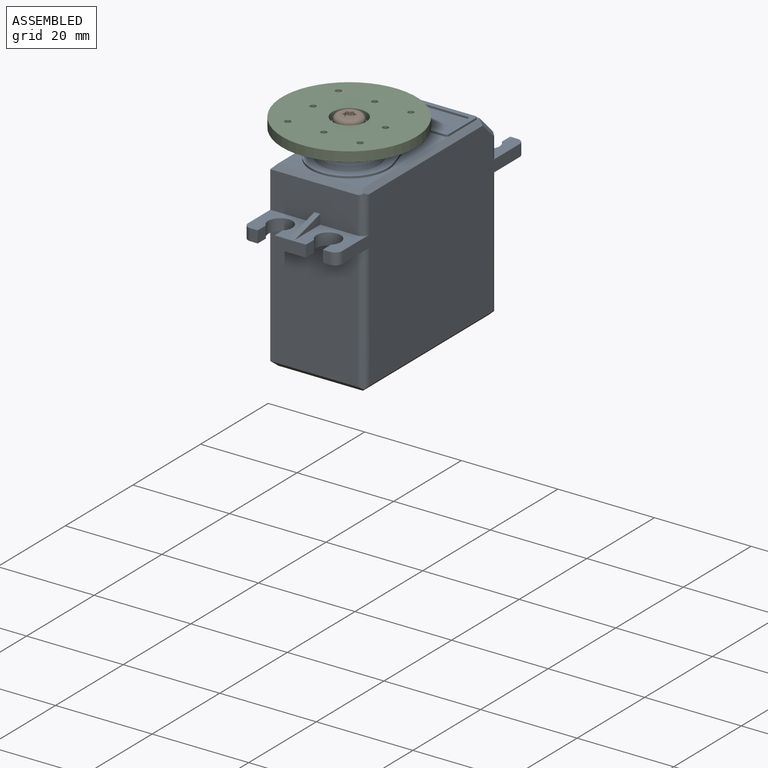
[diagram: assembled view]
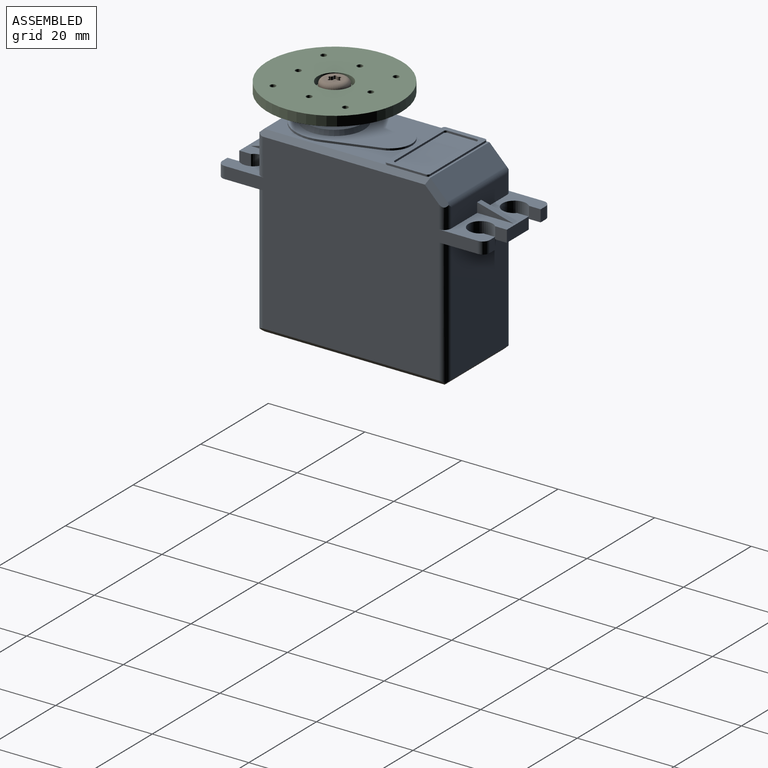
[diagram: assembled view, second angle]
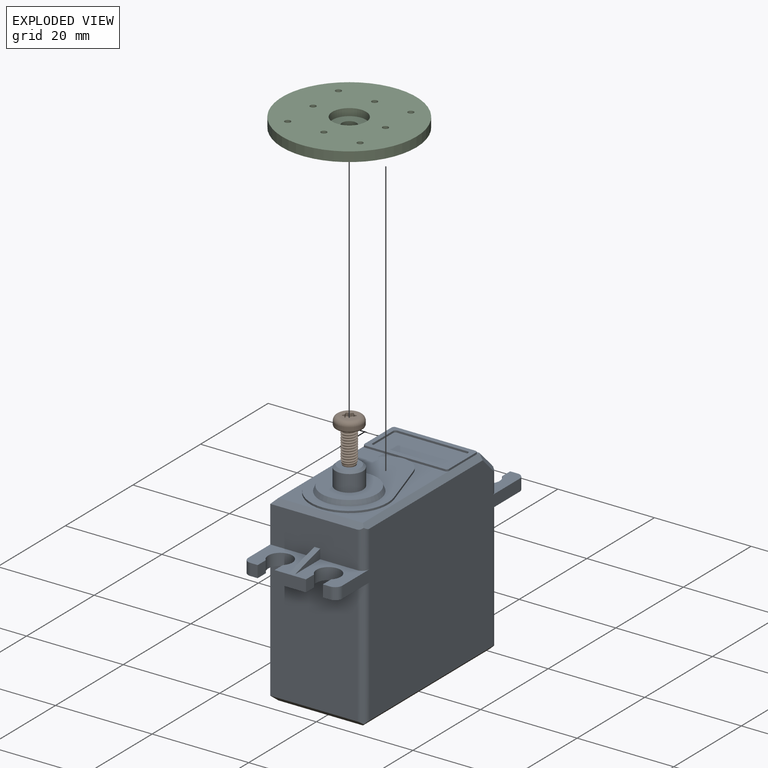
[diagram: exploded view]
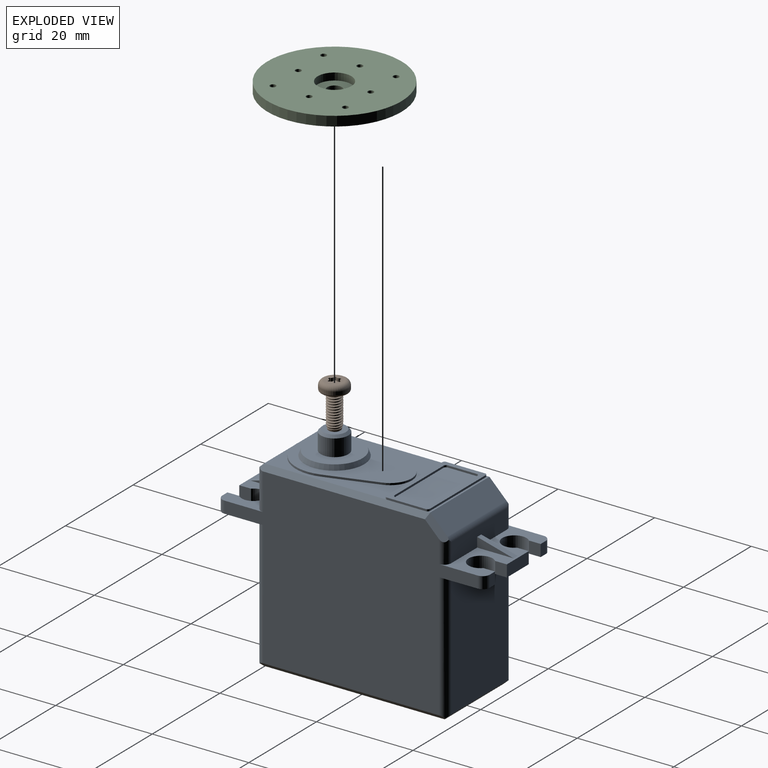
[diagram: exploded view, second angle]
ASSEMBLY  parts=3 mates=2
PART A: 88 faces, bbox 19.5x55.4x43.3 mm
  f0: plane 25.45x17.5mm, normal (0,0,1), area 153.9mm2, adj f42,f43,f44,f45,f56,f57,f58,f77
  f1: plane 17.5x0.91mm, normal (0,0,1), area 7.4mm2, adj f41,f56,f58,f71,f84,f85
  f2: plane 19.5x9.5mm, normal (0,0,1), area 94.3mm2, adj f3,f4,f5,f14,f15,f29,f30,f31
  f3: plane 16.5x3.98mm, normal (0,1,0), area 63.2mm2, adj f2,f36,f37,f38,f60,f61,f62
  f4: plane 2.45x1.5mm, normal (0,1,0), area 3.7mm2, adj f2,f6,f34,f40
  f5: plane 6.5x2.45mm, normal (0,1,0), area 15.9mm2, adj f2,f6,f30,f33
  f6: plane 19.5x9.5mm, normal (0,0,-1), area 103.3mm2, adj f4,f5,f7,f14,f15,f29,f30,f31
  f7: plane 25.85x16.5mm, normal (0,1,0), area 426.5mm2, adj f6,f52,f64,f65
  f8: plane 19.5x9.5mm, normal (0,0,1), area 93.8mm2, adj f9,f10,f11,f14,f15,f17,f18,f19
  f9: plane 18x7.6mm, normal (0,-1,0), area 134.4mm2, adj f8,f14,f24,f25,f26,f57,f63
  f10: plane 6.5x2.45mm, normal (0,-1,0), area 15.9mm2, adj f8,f12,f18,f23
  f11: plane 2.45x1.5mm, normal (0,-1,0), area 3.7mm2, adj f8,f12,f20,f27
  f12: plane 19.5x9.5mm, normal (0,0,-1), area 102.8mm2, adj f10,f11,f13,f14,f15,f17,f18,f19
  f13: plane 25.85x18mm, normal (0,-1,0), area 465.3mm2, adj f12,f14,f53,f66
  f14: plane 52.4x35.9mm, normal (-1,0,0), area 1391.9mm2, adj f2,f6,f8,f9,f12,f13,f27,f39
  f15: plane 52.4x35.9mm, normal (1,0,0), area 1341.7mm2, adj f2,f6,f8,f12,f28,f40,f54,f58
  f16: plane 37.4x17.5mm, normal (0,0,-1), area 654.5mm2, adj f51,f52,f53,f54
  f17: plane 2.45x1.5mm, normal (0,-1,0), area 3.7mm2, adj f8,f12,f21,f28
  f18: plane 2.45x2.41mm, normal (-1,0,0), area 5.9mm2, adj f8,f10,f12,f19
  f19: cylinder r=2.5mm len=5mm, axis (0,0,1), area 29mm2, adj f8,f12,f18,f20
  f20: plane 2.45x2.41mm, normal (1,0,0), area 5.9mm2, adj f8,f11,f12,f19
  f21: plane 2.45x2.41mm, normal (-1,0,0), area 5.9mm2, adj f8,f12,f17,f22
  f22: cylinder r=2.5mm len=5mm, axis (0,0,1), area 29mm2, adj f8,f12,f21,f23
  f23: plane 2.45x2.41mm, normal (1,0,0), area 5.9mm2, adj f8,f10,f12,f22
  f24: plane 7.5x2mm, normal (0,-0.26,0.97), area 9.3mm2, adj f8,f9,f25,f26
  f25: plane 7.5x2mm, normal (1,0,0), area 7.5mm2, adj f8,f9,f24
  f26: plane 7.5x2mm, normal (-1,0,0), area 7.5mm2, adj f8,f9,f24
  f27: cylinder r=1.5mm len=2.45mm, axis (0,0,1), area 5.8mm2, adj f8,f11,f12,f14
  f28: cylinder r=1.5mm len=2.45mm, axis (0,0,-1), area 5.8mm2, adj f8,f12,f15,f17
  f29: plane 2.45x1.5mm, normal (0,1,0), area 3.7mm2, adj f2,f6,f31,f39
  f30: plane 2.45x2.41mm, normal (-1,0,0), area 5.9mm2, adj f2,f5,f6,f32
  f31: plane 2.45x2.41mm, normal (1,0,0), area 5.9mm2, adj f2,f6,f29,f32
  f32: cylinder r=2.5mm len=5mm, axis (0,0,1), area 29mm2, adj f2,f6,f30,f31
  f33: plane 2.45x2.41mm, normal (1,0,0), area 5.9mm2, adj f2,f5,f6,f35
  f34: plane 2.45x2.41mm, normal (-1,0,0), area 5.9mm2, adj f2,f4,f6,f35
  f35: cylinder r=2.5mm len=5mm, axis (0,0,1), area 29mm2, adj f2,f6,f33,f34
  f36: plane 7.5x2mm, normal (0,0.26,0.97), area 9.3mm2, adj f2,f3,f37,f38
  f37: plane 7.5x2mm, normal (1,0,0), area 7.5mm2, adj f2,f3,f36
  f38: plane 7.5x2mm, normal (-1,0,0), area 7.5mm2, adj f2,f3,f36
  f39: cylinder r=1.5mm len=2.45mm, axis (0,0,1), area 5.8mm2, adj f2,f6,f14,f29
  f40: cylinder r=1.5mm len=2.45mm, axis (0,0,-1), area 5.8mm2, adj f2,f4,f6,f15
  f41: plane 17.5x3.56mm, normal (0,0.71,0.71), area 88.1mm2, adj f1,f55,f59,f62
  f42: cylinder r=4.5mm len=8.57mm, axis (0,0,-1), area 4.5mm2, adj f0,f43,f45,f46
  f43: plane 10.43x3.33mm, normal (-0.95,0.3,0), area 4.4mm2, adj f0,f42,f44,f46
  f44: cylinder r=8mm len=16mm, axis (0,0,-1), area 12mm2, adj f0,f43,f45,f46
  f45: plane 10.43x3.33mm, normal (0.95,0.3,0), area 4.4mm2, adj f0,f42,f44,f46
  f46: plane 24x16mm, normal (0,0,1), area 164mm2, adj f42,f43,f44,f45,f48
  f47: plane 11.5x11.5mm, normal (0,0,1), area 78.4mm2, adj f48,f49
  f48: cone r=6.15mm half-angle=21.8deg, axis (0,0,-1), area 40.3mm2, adj f46,f47
  f49: cylinder r=2.85mm len=5.7mm, axis (0,0,-1), area 62.7mm2, adj f47,f67
  f50: plane 4.7x4.7mm, normal (0,0,1), area 12.4mm2, adj f67,f68
  f51: plane 38.96x1mm, normal (-0.71,0,-0.71), area 54mm2, adj f14,f16,f52,f53,f65
  f52: plane 18.62x1mm, normal (0,0.71,-0.71), area 25.5mm2, adj f7,f16,f51,f54,f64,f65
  f53: plane 19.06x1mm, normal (0,-0.71,-0.71), area 25.8mm2, adj f13,f16,f51,f54,f66
  f54: plane 38.52x1mm, normal (0.71,0,-0.71), area 53.6mm2, adj f15,f16,f52,f53,f64,f66
  f55: plane 4.39x4.29mm, normal (-0.71,0.5,0.5), area 7.5mm2, adj f14,f41,f56,f60,f62
  f56: plane 35.4x1mm, normal (-0.71,0,0.71), area 49.1mm2, adj f0,f1,f14,f55,f57,f72
  f57: plane 19.06x1mm, normal (0,-0.71,0.71), area 25.8mm2, adj f0,f9,f56,f58,f63
  f58: plane 34.96x1mm, normal (0.71,0,0.71), area 48.7mm2, adj f0,f1,f15,f57,f59,f63,f70
  f59: plane 4.39x4.29mm, normal (0.71,0.5,0.5), area 7.5mm2, adj f15,f41,f58,f61,f62
  f60: cylinder r=1.5mm len=4.69mm, axis (0,0,1), area 10.2mm2, adj f2,f3,f14,f55,f62
  f61: cylinder r=1.5mm len=4.69mm, axis (0,0,-1), area 10.2mm2, adj f2,f3,f15,f59,f62
  f62: cylinder r=1.5mm len=17.71mm, axis (-1,0,0), area 20.4mm2, adj f3,f41,f55,f59,f60,f61
  f63: cylinder r=1.5mm len=8.04mm, axis (0,0,1), area 18.3mm2, adj f8,f9,f15,f57,f58
  f64: cylinder r=1.5mm len=26.29mm, axis (0,0,-1), area 61.3mm2, adj f6,f7,f15,f52,f54
  f65: cylinder r=1.5mm len=26.29mm, axis (0,0,1), area 61.3mm2, adj f6,f7,f14,f51,f52
  f66: cylinder r=1.5mm len=26.29mm, axis (0,0,1), area 61.3mm2, adj f12,f13,f15,f53,f54
  f67: cone r=2.35mm half-angle=45deg, axis (0,0,-1), area 11.6mm2, adj f49,f50
  f68: cylinder r=1.25mm len=8mm, axis (0,0,1), area 62.8mm2, adj f50,f69
  f69: plane 2.5x2.5mm, normal (0,0,1), area 4.9mm2, adj f68
  f70: plane 8.04x0.4mm, normal (1,0,0), area 3.2mm2, adj f58,f78,f84,f87
  f71: plane 16.5x0.4mm, normal (0,1,0), area 6.6mm2, adj f1,f78,f84,f85
  f72: plane 8.04x0.4mm, normal (-1,0,0), area 3.2mm2, adj f56,f78,f85,f86
  f73: plane 14.5x0.4mm, normal (0,-1,0), area 5.8mm2, adj f78,f79,f80,f83
  f74: plane 6.04x0.4mm, normal (-1,0,0), area 2.4mm2, adj f78,f79,f80,f81
  f75: plane 14.5x0.4mm, normal (0,1,0), area 5.8mm2, adj f78,f79,f81,f82
  f76: plane 6.04x0.4mm, normal (1,0,0), area 2.4mm2, adj f78,f79,f82,f83
  f77: plane 16.5x0.4mm, normal (0,-1,0), area 6.6mm2, adj f0,f78,f86,f87
  f78: plane 17.5x9.04mm, normal (0,0,1), area 49.1mm2, adj f70,f71,f72,f73,f74,f75,f76,f77
  f79: plane 15.5x7.04mm, normal (0,0,1), area 108.8mm2, adj f73,f74,f75,f76,f80,f81,f82,f83
  f80: cylinder r=0.5mm len=0.5mm, axis (0,0,-1), area 0.3mm2, adj f73,f74,f78,f79
  f81: cylinder r=0.5mm len=0.5mm, axis (0,0,1), area 0.3mm2, adj f74,f75,f78,f79
  f82: cylinder r=0.5mm len=0.5mm, axis (0,0,-1), area 0.3mm2, adj f75,f76,f78,f79
  f83: cylinder r=0.5mm len=0.5mm, axis (0,0,1), area 0.3mm2, adj f73,f76,f78,f79
  f84: cylinder r=0.5mm len=0.5mm, axis (0,0,-1), area 0.3mm2, adj f1,f70,f71,f78
  f85: cylinder r=0.5mm len=0.5mm, axis (0,0,-1), area 0.3mm2, adj f1,f71,f72,f78
  f86: cylinder r=0.5mm len=0.5mm, axis (0,0,1), area 0.3mm2, adj f0,f72,f77,f78
  f87: cylinder r=0.5mm len=0.5mm, axis (0,0,1), area 0.3mm2, adj f0,f70,f77,f78
PART B: 53 faces, bbox 6.2x6.2x10.1 mm
  f0: cone r=1.5mm half-angle=13.2deg, axis (0,0,1), area 0.8mm2, adj f1,f4,f25,f26,f27
  f1: cone r=1.5mm half-angle=13.2deg, axis (0,0,1), area 2mm2, adj f0,f2,f26,f27,f28,f29
  f2: cone r=1.5mm half-angle=13.2deg, axis (0,0,1), area 7.2mm2, adj f1,f3,f28,f29,f30,f52
  f3: cylinder r=1.23mm len=7.23mm, axis (0,0,-1), area 14mm2, adj f2,f11,f23,f24,f25,f26,f27,f28
  f4: cylinder r=1.5mm len=6.08mm, axis (0,0,-1), area 7.2mm2, adj f0,f11,f23,f24,f25,f27,f31,f32
  f5: cylinder r=0.25mm len=0.67mm, axis (0,0,1), area 0.4mm2, adj f12,f15,f16,f22
  f6: cylinder r=0.25mm len=0.67mm, axis (0,0,1), area 0.4mm2, adj f12,f16,f20,f22
  f7: cylinder r=0.49mm len=0.67mm, axis (0,0,1), area 0.5mm2, adj f12,f16,f17,f19
  f8: torus R=1.87mm, axis (0,0,-1), area 22.7mm2, adj f9,f12
  f9: cylinder r=2.8mm len=5.6mm, axis (0,0,-1), area 11.7mm2, adj f8,f10
  f10: torus R=2.4mm, axis (0,0,-1), area 10.5mm2, adj f9,f11
  f11: plane 4.95x4.95mm, normal (0,0,-1), area 12.4mm2, adj f3,f4,f10,f23,f24
  f12: plane 3.73x3.73mm, normal (0,0,1), area 7.3mm2, adj f5,f6,f7,f8,f13,f14,f15,f17
  f13: cylinder r=0.49mm len=0.67mm, axis (0,0,1), area 0.5mm2, adj f12,f14,f16,f17
  f14: cylinder r=0.25mm len=0.67mm, axis (0,0,1), area 0.4mm2, adj f12,f13,f15,f16
  f15: cylinder r=0.49mm len=0.67mm, axis (0,0,1), area 0.5mm2, adj f5,f12,f14,f16
  f16: plane 2.49x2.22mm, normal (0,0,1), area 3.6mm2, adj f5,f6,f7,f13,f14,f15,f17,f18
  f17: cylinder r=0.25mm len=0.67mm, axis (0,0,1), area 0.4mm2, adj f7,f12,f13,f16
  f18: cylinder r=0.49mm len=0.67mm, axis (0,0,1), area 0.5mm2, adj f12,f16,f19,f21
  f19: cylinder r=0.25mm len=0.67mm, axis (0,0,1), area 0.4mm2, adj f7,f12,f16,f18
  f20: cylinder r=0.49mm len=0.67mm, axis (0,0,1), area 0.5mm2, adj f6,f12,f16,f21
  f21: cylinder r=0.25mm len=0.67mm, axis (0,0,1), area 0.4mm2, adj f12,f16,f18,f20
  f22: cylinder r=0.49mm len=0.67mm, axis (0,0,1), area 0.5mm2, adj f5,f6,f12,f16
  f23: bspline ~3.46x3mm, area 2.3mm2, adj f3,f4,f11,f32
  f24: bspline ~3x2.79mm, area 1.1mm2, adj f3,f4,f11,f31
  f25: bspline ~3.46x3mm, area 2.7mm2, adj f0,f3,f4,f26,f49
  f26: bspline ~3.46x3mm, area 1.9mm2, adj f0,f1,f3,f25,f28
  f27: bspline ~3x3mm, area 2.2mm2, adj f0,f1,f3,f4,f29,f51
  f28: bspline ~3.18x2.75mm, area 0.6mm2, adj f1,f2,f3,f26
  f29: bspline ~3.29x2.85mm, area 1.2mm2, adj f1,f2,f3,f27,f30
  f30: bspline ~2.94x2.62mm, area 0.2mm2, adj f2,f3,f29
  f31: bspline ~3.46x3mm, area 4mm2, adj f3,f4,f24,f34
  f32: bspline ~3x2.99mm, area 4mm2, adj f3,f4,f23,f33
  f33: bspline ~3.46x3mm, area 2.7mm2, adj f3,f4,f32,f36
  f34: bspline ~3.46x3mm, area 2.7mm2, adj f3,f4,f31,f35
  f35: bspline ~3.46x3mm, area 2.7mm2, adj f3,f4,f34,f38
  f36: bspline ~3.46x3mm, area 2.7mm2, adj f3,f4,f33,f37
  f37: bspline ~3.46x3mm, area 2.7mm2, adj f3,f4,f36,f40
  f38: bspline ~3.46x3mm, area 2.7mm2, adj f3,f4,f35,f39
  f39: bspline ~3.46x3mm, area 2.7mm2, adj f3,f4,f38,f42
  f40: bspline ~3.46x3mm, area 2.7mm2, adj f3,f4,f37,f41
  f41: bspline ~3.46x3mm, area 2.7mm2, adj f3,f4,f40,f44
  f42: bspline ~3.46x3mm, area 2.7mm2, adj f3,f4,f39,f43
  f43: bspline ~3.46x3mm, area 2.7mm2, adj f3,f4,f42,f46
  f44: bspline ~3.46x3mm, area 2.7mm2, adj f3,f4,f41,f45
  f45: bspline ~3.46x3mm, area 2.7mm2, adj f3,f4,f44,f48
  f46: bspline ~3.46x3mm, area 2.7mm2, adj f3,f4,f43,f47
  f47: bspline ~3.46x3mm, area 2.7mm2, adj f3,f4,f46,f50
  f48: bspline ~3.46x3mm, area 2.7mm2, adj f3,f4,f45,f49
  f49: bspline ~3.46x3mm, area 2.7mm2, adj f3,f4,f25,f48
  f50: bspline ~3.46x3mm, area 2.7mm2, adj f3,f4,f47,f51
  f51: bspline ~3.46x3mm, area 2.7mm2, adj f3,f4,f27,f50
  f52: plane 2.1x2.1mm, normal (0,0,-1), area 3.5mm2, adj f2
PART C: 18 faces, bbox 27.8x27.8x6.1 mm
  f0: cylinder r=1.5mm len=3mm, axis (0,0,-1), area 8.5mm2, adj f7,f8
  f1: cylinder r=13.9mm len=27.8mm, axis (0,0,-1), area 174.7mm2, adj f2,f3
  f2: plane 27.8x27.8mm, normal (0,0,1), area 534.3mm2, adj f1,f4,f10,f11,f12,f13,f14,f15
  f3: plane 27.8x27.8mm, normal (0,0,-1), area 559.5mm2, adj f1,f9,f10,f11,f12,f13,f14,f15
  f4: cylinder r=4.5mm len=9mm, axis (0,0,-1), area 115.9mm2, adj f2,f5
  f5: plane 9x9mm, normal (0,0,1), area 38.1mm2, adj f4,f6
  f6: cylinder r=2.85mm len=5.7mm, axis (0,0,1), area 66.3mm2, adj f5,f7
  f7: plane 5.7x5.7mm, normal (0,0,1), area 18.4mm2, adj f0,f6
  f8: plane 7x7mm, normal (0,0,-1), area 31.4mm2, adj f0,f9
  f9: cylinder r=3.5mm len=7mm, axis (0,0,-1), area 33mm2, adj f3,f8
  f10: cylinder r=0.6mm len=2mm, axis (0,0,-1), area 7.5mm2, adj f2,f3
  f11: cylinder r=0.6mm len=2mm, axis (0,0,-1), area 7.5mm2, adj f2,f3
  f12: cylinder r=0.6mm len=2mm, axis (0,0,-1), area 7.5mm2, adj f2,f3
  f13: cylinder r=0.6mm len=2mm, axis (0,0,-1), area 7.5mm2, adj f2,f3
  f14: cylinder r=0.6mm len=2mm, axis (0,0,-1), area 7.5mm2, adj f2,f3
  f15: cylinder r=0.6mm len=2mm, axis (0,0,-1), area 7.5mm2, adj f2,f3
  f16: cylinder r=0.6mm len=2mm, axis (0,0,-1), area 7.5mm2, adj f2,f3
  f17: cylinder r=0.6mm len=2mm, axis (0,0,-1), area 7.5mm2, adj f2,f3
PLACE A at identity fixed
PLACE B t=(0,-10.25,44.2)mm
PLACE C rot(axis=(1,0,0),180deg) t=(0,-10.25,45.7)mm
MATE fastened C.f9 <-> B.f10  axis (0,0,1) through (0,-10.25,44.2)mm
MATE revolute A.f48 <-> C.f6  axis (0,0,1) through (0,-10.25,43.3)mm
